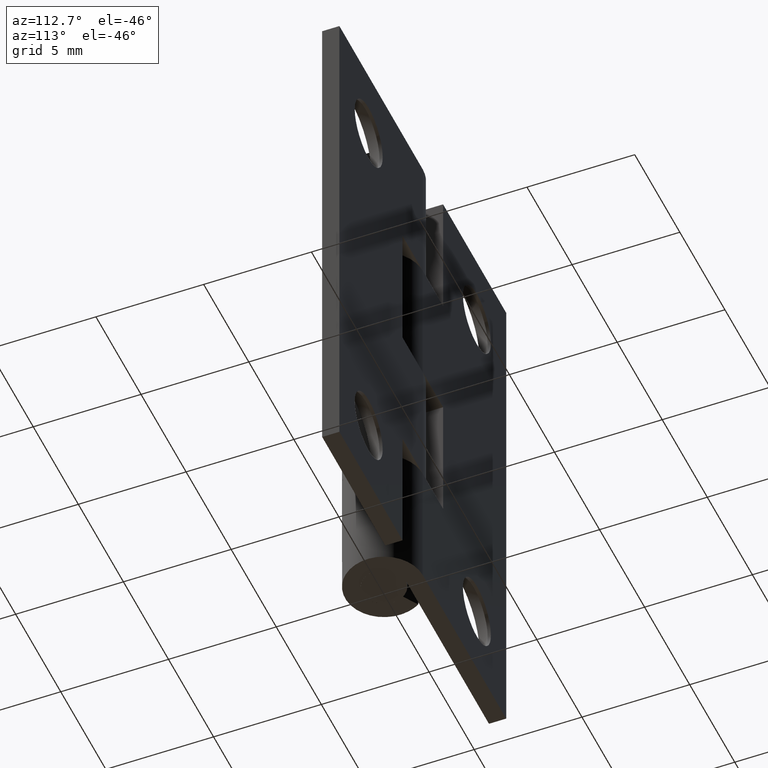
[diagram: clean part render]
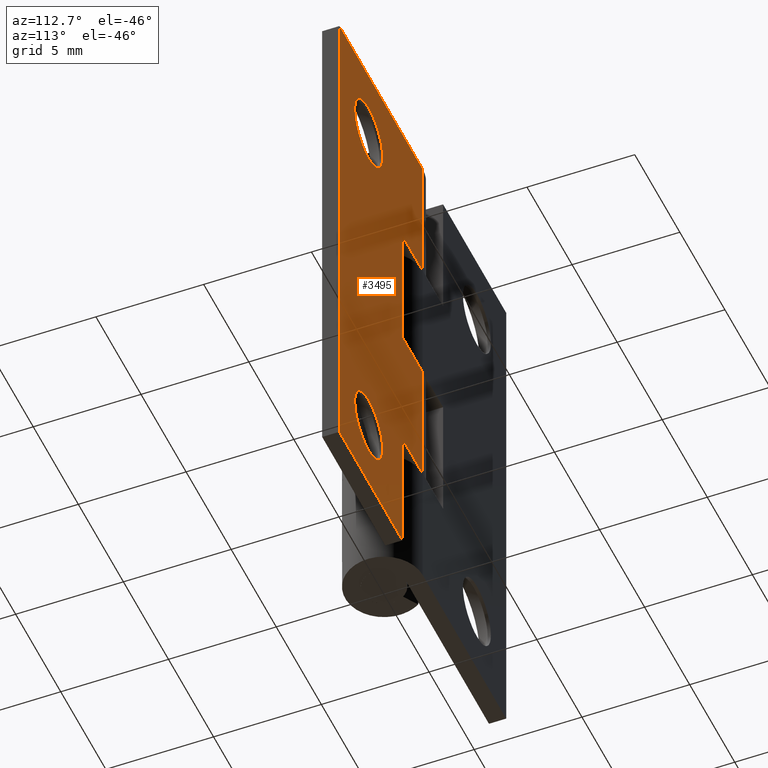
[diagram: same view with one face highlighted and labeled with its STEP entity id]
A machine part, auxiliary view. The second image highlights one B-rep face of the part: STEP entity #3495.
In plain terms, the highlighted face is a freeform B-spline surface patch.
Its self-contained STEP definition (entity closure, byte-faithful):
#1978=CARTESIAN_POINT('',(4.816488715945065,1.799998998641970,22.500900217649129));
#1979=VERTEX_POINT('',#1978);
#1985=CARTESIAN_POINT('',(6.0,1.799998998641970,23.050000000000001));
#1986=VERTEX_POINT('',#1985);
#1987=CARTESIAN_POINT('',(4.816488715945065,1.799998998641970,22.500900217649129));
#1988=CARTESIAN_POINT('',(4.920600106380847,1.799998998641973,22.624138094289570));
#1989=CARTESIAN_POINT('',(5.119429000202327,1.799998998641971,22.795784604052528));
#1990=CARTESIAN_POINT('',(5.409627689072518,1.799998998641970,22.940088106862429));
#1991=CARTESIAN_POINT('',(5.684395190800965,1.799998998641975,23.026724860825951));
#1992=CARTESIAN_POINT('',(5.873747467864144,1.799998998641963,23.050035512623470));
#1993=CARTESIAN_POINT('',(6.0,1.799998998641970,23.050000000000001));
#1994=B_SPLINE_CURVE_WITH_KNOTS('',3,(#1987,#1988,#1989,#1990,#1991,#1992,#1993),.UNSPECIFIED.,.F.,.U.,(4,1,1,1,4),(8.832639E-009,0.483954131775972,0.778532415958238,0.967906541728068,1.346652863201442),.UNSPECIFIED.);
#1995=EDGE_CURVE('',#1979,#1986,#1994,.T.);
#1997=CARTESIAN_POINT('',(7.549999999999979,1.799998998641970,21.499999743619870));
#1998=VERTEX_POINT('',#1997);
#1999=CARTESIAN_POINT('',(6.0,1.799998998641970,23.050000000000001));
#2000=CARTESIAN_POINT('',(6.164866619557653,1.799998998641970,23.050093130793211));
#2001=CARTESIAN_POINT('',(6.424753406213109,1.799998998641973,23.008110508901531));
#2002=CARTESIAN_POINT('',(6.780816024525333,1.799998998641964,22.852891488335800));
#2003=CARTESIAN_POINT('',(7.044861871072587,1.799998998641984,22.662038058422802));
#2004=CARTESIAN_POINT('',(7.281201084849715,1.799998998641961,22.394752670101909));
#2005=CARTESIAN_POINT('',(7.438305710909686,1.799998998641971,22.109333611705338));
#2006=CARTESIAN_POINT('',(7.530630287957696,1.799998998641978,21.797993018986400));
#2007=CARTESIAN_POINT('',(7.550013777080090,1.799998998641965,21.601446222562458));
#2008=CARTESIAN_POINT('',(7.549999999999979,1.799998998641970,21.499999743619870));
#2009=B_SPLINE_CURVE_WITH_KNOTS('',3,(#1999,#2000,#2001,#2002,#2003,#2004,#2005,#2006,#2007,#2008),.UNSPECIFIED.,.F.,.U.,(4,1,1,1,1,1,1,4),(0.000000027867610,0.494557774623049,0.779882344019317,1.160314967084503,1.464653218720320,1.845084306576406,2.130411954696784,2.434749727958897),.UNSPECIFIED.);
#2010=EDGE_CURVE('',#1986,#1998,#2009,.T.);
#2012=CARTESIAN_POINT('',(6.0,1.799998998641970,19.949999999999999));
#2013=VERTEX_POINT('',#2012);
#2014=CARTESIAN_POINT('',(7.549999999999979,1.799998998641970,21.499999743619870));
#2015=CARTESIAN_POINT('',(7.550036110540130,1.799998998641971,21.366848648054471));
#2016=CARTESIAN_POINT('',(7.516305484209995,1.799998998641967,21.106904880493140));
#2017=CARTESIAN_POINT('',(7.376351898100452,1.799998998641970,20.756937477157479));
#2018=CARTESIAN_POINT('',(7.163307716602615,1.799998998641968,20.454427161952498));
#2019=CARTESIAN_POINT('',(6.895301753993796,1.799998998641976,20.217453560964039));
#2020=CARTESIAN_POINT('',(6.597119066931779,1.799998998641961,20.058085476715661));
#2021=CARTESIAN_POINT('',(6.297994371430442,1.799998998641977,19.969367841378311));
#2022=CARTESIAN_POINT('',(6.101446350498602,1.799998998641967,19.949986238138361));
#2023=CARTESIAN_POINT('',(6.0,1.799998998641970,19.949999999999999));
#2024=B_SPLINE_CURVE_WITH_KNOTS('',3,(#2014,#2015,#2016,#2017,#2018,#2019,#2020,#2021,#2022,#2023),.UNSPECIFIED.,.F.,.U.,(4,1,1,1,1,1,1,4),(0.000000027956520,0.399446948422886,0.779882251567496,1.122277709914741,1.502690982271264,1.845084087544465,2.130411701790095,2.434749438956943),.UNSPECIFIED.);
#2025=EDGE_CURVE('',#1998,#2013,#2024,.T.);
#2027=CARTESIAN_POINT('',(4.933050463260495,1.799998998641970,20.375669756313670));
#2028=VERTEX_POINT('',#2027);
#2029=CARTESIAN_POINT('',(6.0,1.799998998641970,19.949999999999999));
#2030=CARTESIAN_POINT('',(5.852893198107783,1.799998998641967,19.949941327126290));
#2031=CARTESIAN_POINT('',(5.620026481802642,1.799998998641972,19.983419136853438));
#2032=CARTESIAN_POINT('',(5.252711659728622,1.799998998641968,20.124926904790851));
#2033=CARTESIAN_POINT('',(5.048600109961645,1.799998998641970,20.265912006195411));
#2034=CARTESIAN_POINT('',(4.933050463260495,1.799998998641970,20.375669756313670));
#2035=B_SPLINE_CURVE_WITH_KNOTS('',3,(#2029,#2030,#2031,#2032,#2033,#2034),.UNSPECIFIED.,.F.,.U.,(4,1,1,4),(7.081373E-009,0.441300896744397,0.698720524169470,1.176795106084680),.UNSPECIFIED.);
#2036=EDGE_CURVE('',#2013,#2028,#2035,.T.);
#2141=CARTESIAN_POINT('',(4.450000000000022,1.799998998641970,21.500000256380140));
#2142=VERTEX_POINT('',#2141);
#2143=CARTESIAN_POINT('',(4.933050463260495,1.799998998641970,20.375669756313670));
#2144=CARTESIAN_POINT('',(4.823694759368900,1.799998998641967,20.479359788071040));
#2145=CARTESIAN_POINT('',(4.668370723800017,1.799998998641971,20.677307903683840));
#2146=CARTESIAN_POINT('',(4.494755053246134,1.799998998641972,21.061094052032079));
#2147=CARTESIAN_POINT('',(4.449894873769694,1.799998998641968,21.329635319428519));
#2148=CARTESIAN_POINT('',(4.450000000000022,1.799998998641970,21.500000256380140));
#2149=B_SPLINE_CURVE_WITH_KNOTS('',3,(#2143,#2144,#2145,#2146,#2147,#2148),.UNSPECIFIED.,.F.,.U.,(4,1,1,4),(8.583070E-009,0.452080175810961,0.746907302044097,1.257954736725040),.UNSPECIFIED.);
#2150=EDGE_CURVE('',#2028,#2142,#2149,.T.);
#2152=CARTESIAN_POINT('',(4.450000000000022,1.799998998641970,21.500000256380140));
#2153=CARTESIAN_POINT('',(4.449958494961822,1.799998998641970,21.636016577282899));
#2154=CARTESIAN_POINT('',(4.480039102129121,1.799998998641986,21.862676884433348));
#2155=CARTESIAN_POINT('',(4.605231552628194,1.799998998641944,22.204577000895249));
#2156=CARTESIAN_POINT('',(4.728622185515127,1.799998998641993,22.397073828047429));
#2157=CARTESIAN_POINT('',(4.816488715945065,1.799998998641970,22.500900217649129));
#2158=B_SPLINE_CURVE_WITH_KNOTS('',3,(#2152,#2153,#2154,#2155,#2156,#2157),.UNSPECIFIED.,.F.,.U.,(4,1,1,4),(6.224629E-009,0.408036491428477,0.680060547386475,1.088097032593234),.UNSPECIFIED.);
#2159=EDGE_CURVE('',#2142,#1979,#2158,.T.);
#2352=CARTESIAN_POINT('',(4.816488715945065,1.799998998641970,4.500900217649128));
#2353=VERTEX_POINT('',#2352);
#2359=CARTESIAN_POINT('',(6.0,1.799998998641970,5.050000000000000));
#2360=VERTEX_POINT('',#2359);
#2361=CARTESIAN_POINT('',(4.816488715945065,1.799998998641970,4.500900217649128));
#2362=CARTESIAN_POINT('',(4.897990670506410,1.799998998641969,4.597320735737857));
#2363=CARTESIAN_POINT('',(5.038058390753911,1.799998998641972,4.726852637989643));
#2364=CARTESIAN_POINT('',(5.311335822247929,1.799998998641967,4.899497933988570));
#2365=CARTESIAN_POINT('',(5.614247084779911,1.799998998641979,5.018135320789431));
#2366=CARTESIAN_POINT('',(5.873751203881048,1.799998998641956,5.050026443211307));
#2367=CARTESIAN_POINT('',(6.0,1.799998998641970,5.050000000000000));
#2368=B_SPLINE_CURVE_WITH_KNOTS('',3,(#2361,#2362,#2363,#2364,#2365,#2366,#2367),.UNSPECIFIED.,.F.,.U.,(4,1,1,1,4),(8.832754E-009,0.378746219724884,0.568120239984068,0.967906541728235,1.346652863201440),.UNSPECIFIED.);
#2369=EDGE_CURVE('',#2353,#2360,#2368,.T.);
#2371=CARTESIAN_POINT('',(7.549999999999979,1.799998998641970,3.499999743619866));
#2372=VERTEX_POINT('',#2371);
#2373=CARTESIAN_POINT('',(6.0,1.799998998641970,5.050000000000000));
#2374=CARTESIAN_POINT('',(6.114127960980506,1.799998998641971,5.050020724542386));
#2375=CARTESIAN_POINT('',(6.310672467383325,1.799998998641968,5.028188648317563));
#2376=CARTESIAN_POINT('',(6.602293465159231,1.799998998641970,4.937776287962624));
#2377=CARTESIAN_POINT('',(6.844841293913726,1.799998998641972,4.810041641216362));
#2378=CARTESIAN_POINT('',(7.054421887539101,1.799998998641967,4.644381298833864));
#2379=CARTESIAN_POINT('',(7.244830176312821,1.799998998641971,4.439446161937448));
#2380=CARTESIAN_POINT('',(7.403790470165031,1.799998998641971,4.184986741625325));
#2381=CARTESIAN_POINT('',(7.521823929333683,1.799998998641971,3.855050679414986));
#2382=CARTESIAN_POINT('',(7.550033707733521,1.799998998641978,3.626810070014880));
#2383=CARTESIAN_POINT('',(7.549999999999979,1.799998998641970,3.499999743619866));
#2384=B_SPLINE_CURVE_WITH_KNOTS('',3,(#2373,#2374,#2375,#2376,#2377,#2378,#2379,#2380,#2381,#2382,#2383),.UNSPECIFIED.,.F.,.U.,(4,1,1,1,1,1,1,1,4),(0.000000027868597,0.342381487699762,0.589665892377036,0.913034015460115,1.160314967085020,1.388561529780386,1.749975583337885,2.054324382016043,2.434749727958931),.UNSPECIFIED.);
#2385=EDGE_CURVE('',#2360,#2372,#2384,.T.);
#2387=CARTESIAN_POINT('',(6.0,1.799998998641970,1.950000000000000));
#2388=VERTEX_POINT('',#2387);
#2389=CARTESIAN_POINT('',(7.549999999999979,1.799998998641970,3.499999743619866));
#2390=CARTESIAN_POINT('',(7.550012343202174,1.799998998641971,3.398552249353882));
#2391=CARTESIAN_POINT('',(7.530633069263772,1.799998998641969,3.202004179216616));
#2392=CARTESIAN_POINT('',(7.436492498290936,1.799998998641974,2.884557641763789));
#2393=CARTESIAN_POINT('',(7.277532052714551,1.799998998641956,2.599883829775515));
#2394=CARTESIAN_POINT('',(7.069395690764197,1.799998998642000,2.367444347423776));
#2395=CARTESIAN_POINT('',(6.879764918413754,1.799998998641949,2.217580368087237));
#2396=CARTESIAN_POINT('',(6.660236154113809,1.799998998641995,2.089619086679136));
#2397=CARTESIAN_POINT('',(6.374071764046817,1.799998998641956,1.981243156206873));
#2398=CARTESIAN_POINT('',(6.133152086932110,1.799998998641974,1.949959903424166));
#2399=CARTESIAN_POINT('',(6.0,1.799998998641970,1.950000000000000));
#2400=B_SPLINE_CURVE_WITH_KNOTS('',3,(#2389,#2390,#2391,#2392,#2393,#2394,#2395,#2396,#2397,#2398,#2399),.UNSPECIFIED.,.F.,.U.,(4,1,1,1,1,1,1,1,4),(0.000000027956595,0.304342185882899,0.589665822459385,0.989124336373800,1.274435403791308,1.521716489745741,1.711932981148243,2.035299837844321,2.434749438956941),.UNSPECIFIED.);
#2401=EDGE_CURVE('',#2372,#2388,#2400,.T.);
#2403=CARTESIAN_POINT('',(4.933050463260495,1.799998998641970,2.375669756313669));
#2404=VERTEX_POINT('',#2403);
#2405=CARTESIAN_POINT('',(6.0,1.799998998641970,1.950000000000000));
#2406=CARTESIAN_POINT('',(5.877414820121601,1.799998998641968,1.949970337657791));
#2407=CARTESIAN_POINT('',(5.644524596408636,1.799998998641972,1.977780401467781));
#2408=CARTESIAN_POINT('',(5.273122173724059,1.799998998641968,2.110807781782007));
#2409=CARTESIAN_POINT('',(5.048597134918349,1.799998998641972,2.265913146386598));
#2410=CARTESIAN_POINT('',(4.933050463260495,1.799998998641970,2.375669756313669));
#2411=B_SPLINE_CURVE_WITH_KNOTS('',3,(#2405,#2406,#2407,#2408,#2409,#2410),.UNSPECIFIED.,.F.,.U.,(4,1,1,4),(7.081994E-009,0.367749654964005,0.698720524169683,1.176795106084679),.UNSPECIFIED.);
#2412=EDGE_CURVE('',#2388,#2404,#2411,.T.);
#2515=CARTESIAN_POINT('',(4.450000000000021,1.799998998641970,3.500000256380142));
#2516=VERTEX_POINT('',#2515);
#2517=CARTESIAN_POINT('',(4.933050463260495,1.799998998641970,2.375669756313669));
#2518=CARTESIAN_POINT('',(4.809404041125323,1.799998998641968,2.492862610364447));
#2519=CARTESIAN_POINT('',(4.629466125721633,1.799998998641977,2.731462050042651));
#2520=CARTESIAN_POINT('',(4.480146080121502,1.799998998641959,3.126557854062410));
#2521=CARTESIAN_POINT('',(4.449977101984691,1.799998998641966,3.375514257564126));
#2522=CARTESIAN_POINT('',(4.450000000000021,1.799998998641970,3.500000256380142));
#2523=B_SPLINE_CURVE_WITH_KNOTS('',3,(#2517,#2518,#2519,#2520,#2521,#2522),.UNSPECIFIED.,.F.,.U.,(4,1,1,4),(8.580954E-009,0.511047443257714,0.884498418680186,1.257954736725039),.UNSPECIFIED.);
#2524=EDGE_CURVE('',#2404,#2516,#2523,.T.);
#2526=CARTESIAN_POINT('',(4.450000000000021,1.799998998641970,3.500000256380142));
#2527=CARTESIAN_POINT('',(4.449959373845477,1.799998998641972,3.636016204246661));
#2528=CARTESIAN_POINT('',(4.483032575740275,1.799998998641965,3.885347307208371));
#2529=CARTESIAN_POINT('',(4.615987098616979,1.799998998641966,4.225150590390020));
#2530=CARTESIAN_POINT('',(4.743284668721488,1.799998998641973,4.414366008915404));
#2531=CARTESIAN_POINT('',(4.816488715945065,1.799998998641970,4.500900217649128));
#2532=B_SPLINE_CURVE_WITH_KNOTS('',3,(#2526,#2527,#2528,#2529,#2530,#2531),.UNSPECIFIED.,.F.,.U.,(4,1,1,4),(6.224481E-009,0.408036491428470,0.748065390984781,1.088097032593243),.UNSPECIFIED.);
#2533=EDGE_CURVE('',#2516,#2353,#2532,.T.);
#2693=CARTESIAN_POINT('',(2.250000000000000,1.799998999999940,18.750000000000000));
#2694=VERTEX_POINT('',#2693);
#2702=CARTESIAN_POINT('',(2.250000000000000,1.799998999999940,12.500000000000000));
#2703=VERTEX_POINT('',#2702);
#2704=CARTESIAN_POINT('',(2.250000000000000,1.799998999999940,18.750000000000000));
#2705=CARTESIAN_POINT('',(2.250000000000000,1.799998999999940,12.500000000000000));
#2706=QUASI_UNIFORM_CURVE('',1,(#2704,#2705),.UNSPECIFIED.,.F.,.U.);
#2707=EDGE_CURVE('',#2694,#2703,#2706,.T.);
#2730=CARTESIAN_POINT('',(0.001897366339662,1.799998999999940,12.500000000000000));
#2731=VERTEX_POINT('',#2730);
#2732=CARTESIAN_POINT('',(2.250000000000000,1.799998999999940,12.500000000000000));
#2733=CARTESIAN_POINT('',(0.001897366339662,1.799998999999940,12.500000000000000));
#2734=QUASI_UNIFORM_CURVE('',1,(#2732,#2733),.UNSPECIFIED.,.F.,.U.);
#2735=EDGE_CURVE('',#2703,#2731,#2734,.T.);
#2938=CARTESIAN_POINT('',(0.001897366339662,1.799998999999940,18.750000000000000));
#2939=VERTEX_POINT('',#2938);
#2945=CARTESIAN_POINT('',(0.001897366339662,1.799998999999940,18.750000000000000));
#2946=CARTESIAN_POINT('',(2.250000000000000,1.799998999999940,18.750000000000000));
#2947=QUASI_UNIFORM_CURVE('',1,(#2945,#2946),.UNSPECIFIED.,.F.,.U.);
#2948=EDGE_CURVE('',#2939,#2694,#2947,.T.);
#2964=CARTESIAN_POINT('',(2.250000000000000,1.799998999999940,6.250000000000000));
#2965=VERTEX_POINT('',#2964);
#2973=CARTESIAN_POINT('',(2.250000000000000,1.799999000000000,0.0));
#2974=VERTEX_POINT('',#2973);
#2975=CARTESIAN_POINT('',(2.250000000000000,1.799998999999940,6.250000000000000));
#2976=CARTESIAN_POINT('',(2.250000000000000,1.799999000000000,0.0));
#2977=QUASI_UNIFORM_CURVE('',1,(#2975,#2976),.UNSPECIFIED.,.F.,.U.);
#2978=EDGE_CURVE('',#2965,#2974,#2977,.T.);
#3092=CARTESIAN_POINT('',(0.001897366339662,1.799998999999940,6.250000000000000));
#3093=VERTEX_POINT('',#3092);
#3099=CARTESIAN_POINT('',(0.001897366339662,1.799998999999940,6.250000000000000));
#3100=CARTESIAN_POINT('',(2.250000000000000,1.799998999999940,6.250000000000000));
#3101=QUASI_UNIFORM_CURVE('',1,(#3099,#3100),.UNSPECIFIED.,.F.,.U.);
#3102=EDGE_CURVE('',#3093,#2965,#3101,.T.);
#3166=CARTESIAN_POINT('',(9.250000000000000,1.799999000000000,25.0));
#3167=VERTEX_POINT('',#3166);
#3173=CARTESIAN_POINT('',(0.001897366339662,1.799999000000000,25.0));
#3174=VERTEX_POINT('',#3173);
#3175=CARTESIAN_POINT('',(9.250000000000000,1.799999000000000,25.0));
#3176=CARTESIAN_POINT('',(0.001897366339662,1.799999000000000,25.0));
#3177=QUASI_UNIFORM_CURVE('',1,(#3175,#3176),.UNSPECIFIED.,.F.,.U.);
#3178=EDGE_CURVE('',#3167,#3174,#3177,.T.);
#3244=CARTESIAN_POINT('',(9.250000000000000,1.799999000000000,0.0));
#3245=VERTEX_POINT('',#3244);
#3251=CARTESIAN_POINT('',(9.250000000000000,1.799999000000000,0.0));
#3252=CARTESIAN_POINT('',(9.250000000000000,1.799999000000000,25.0));
#3253=QUASI_UNIFORM_CURVE('',1,(#3251,#3252),.UNSPECIFIED.,.F.,.U.);
#3254=EDGE_CURVE('',#3245,#3167,#3253,.T.);
#3270=CARTESIAN_POINT('',(9.250000000000000,1.799999000000000,0.0));
#3271=CARTESIAN_POINT('',(2.250000000000000,1.799999000000000,0.0));
#3272=QUASI_UNIFORM_CURVE('',1,(#3270,#3271),.UNSPECIFIED.,.F.,.U.);
#3273=EDGE_CURVE('',#3245,#2974,#3272,.T.);
#3344=CARTESIAN_POINT('',(0.001897366339662,1.799998999999940,6.250000000000000));
#3345=CARTESIAN_POINT('',(0.001897366339662,1.799998999999940,12.500000000000000));
#3346=QUASI_UNIFORM_CURVE('',1,(#3344,#3345),.UNSPECIFIED.,.F.,.U.);
#3347=EDGE_CURVE('',#3093,#2731,#3346,.T.);
#3384=CARTESIAN_POINT('',(0.001897366339662,1.799998999999940,18.750000000000000));
#3385=CARTESIAN_POINT('',(0.001897366339662,1.799999000000000,25.0));
#3386=QUASI_UNIFORM_CURVE('',1,(#3384,#3385),.UNSPECIFIED.,.F.,.U.);
#3387=EDGE_CURVE('',#2939,#3174,#3386,.T.);
#3462=CARTESIAN_POINT('',(-0.460045342287054,1.799999000000000,-1.248749951545149));
#3463=CARTESIAN_POINT('',(-0.460045342287054,1.799999000000000,26.248750622097401));
#3464=CARTESIAN_POINT('',(9.711942956680161,1.799999000000000,-1.248749951545149));
#3465=CARTESIAN_POINT('',(9.711942956680161,1.799999000000000,26.248750622097401));
#3466=B_SPLINE_SURFACE_WITH_KNOTS('',1,1,((#3462,#3464),(#3463,#3465)),.UNSPECIFIED.,.F.,.F.,.U.,(2,2),(2,2),(0.0,27.497500573642551),(0.0,10.171988298967220),.UNSPECIFIED.);
#3467=ORIENTED_EDGE('',*,*,#2707,.F.);
#3468=ORIENTED_EDGE('',*,*,#2948,.F.);
#3469=ORIENTED_EDGE('',*,*,#3387,.T.);
#3470=ORIENTED_EDGE('',*,*,#3178,.F.);
#3471=ORIENTED_EDGE('',*,*,#3254,.F.);
#3472=ORIENTED_EDGE('',*,*,#3273,.T.);
#3473=ORIENTED_EDGE('',*,*,#2978,.F.);
#3474=ORIENTED_EDGE('',*,*,#3102,.F.);
#3475=ORIENTED_EDGE('',*,*,#3347,.T.);
#3476=ORIENTED_EDGE('',*,*,#2735,.F.);
#3477=EDGE_LOOP('',(#3467,#3468,#3469,#3470,#3471,#3472,#3473,#3474,#3475,#3476));
#3478=FACE_OUTER_BOUND('',#3477,.T.);
#3479=ORIENTED_EDGE('',*,*,#2385,.F.);
#3480=ORIENTED_EDGE('',*,*,#2369,.F.);
#3481=ORIENTED_EDGE('',*,*,#2533,.F.);
#3482=ORIENTED_EDGE('',*,*,#2524,.F.);
#3483=ORIENTED_EDGE('',*,*,#2412,.F.);
#3484=ORIENTED_EDGE('',*,*,#2401,.F.);
#3485=EDGE_LOOP('',(#3479,#3480,#3481,#3482,#3483,#3484));
#3486=FACE_BOUND('',#3485,.T.);
#3487=ORIENTED_EDGE('',*,*,#2010,.F.);
#3488=ORIENTED_EDGE('',*,*,#1995,.F.);
#3489=ORIENTED_EDGE('',*,*,#2159,.F.);
#3490=ORIENTED_EDGE('',*,*,#2150,.F.);
#3491=ORIENTED_EDGE('',*,*,#2036,.F.);
#3492=ORIENTED_EDGE('',*,*,#2025,.F.);
#3493=EDGE_LOOP('',(#3487,#3488,#3489,#3490,#3491,#3492));
#3494=FACE_BOUND('',#3493,.T.);
#3495=ADVANCED_FACE('',(#3478,#3486,#3494),#3466,.T.);